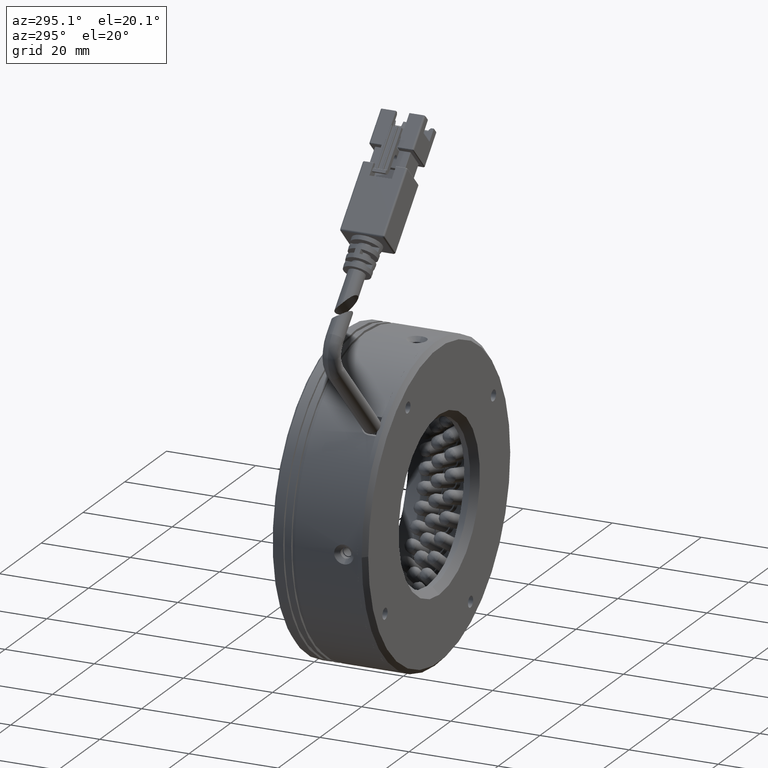
[diagram: clean part render]
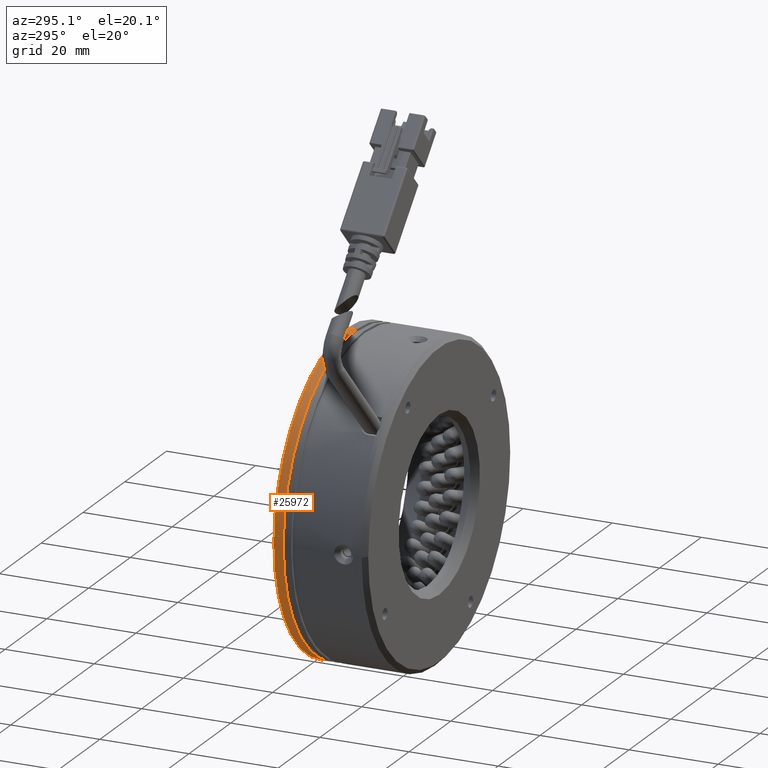
[diagram: same view with one face highlighted and labeled with its STEP entity id]
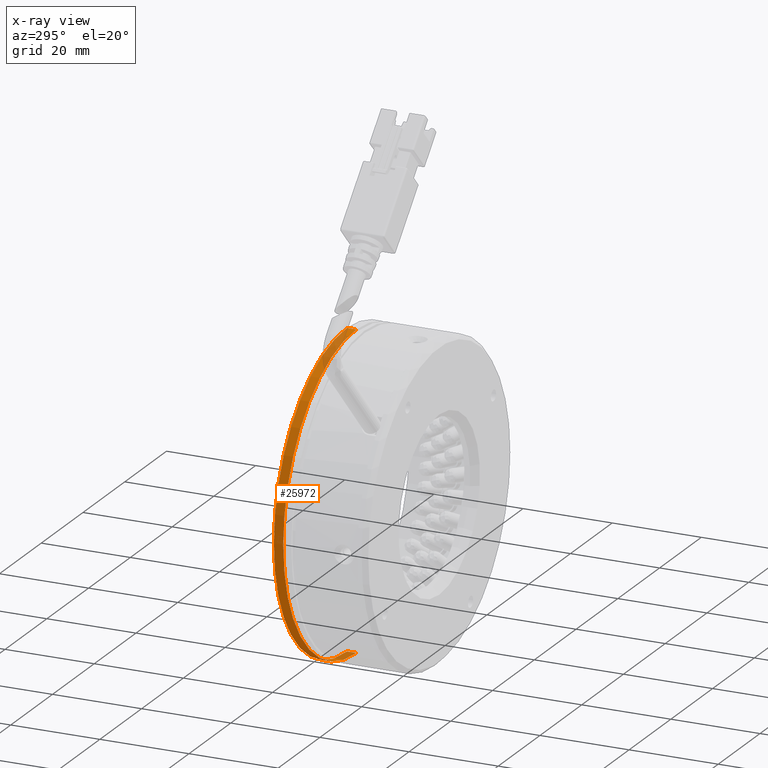
[diagram: x-ray of the same camera — body ghosted, the highlighted face saturated]
A machine part, auxiliary view. The second image highlights one B-rep face of the part: STEP entity #25972.
The next image is the same camera in x-ray: the body ghosted, the highlighted face saturated — about 12% of this face is hidden behind the body in this view.
In plain terms, the highlighted cylindrical surface (partial cylindrical patch) has radius 35 mm, axis along (-0, -1, -0).
Its self-contained STEP definition (entity closure, byte-faithful):
#1907 = LINE ( 'NONE', #85296, #42113 ) ;
#3392 = DIRECTION ( 'NONE',  ( -0.0000000000000000000, -1.000000000000000000, -0.0000000000000000000 ) ) ;
#5511 = ORIENTED_EDGE ( 'NONE', *, *, #39408, .F. ) ;
#9896 = CARTESIAN_POINT ( 'NONE',  ( -37.22376356038466100, -10.10550973775694800, -13.10242548495532100 ) ) ;
#18032 = LINE ( 'NONE', #79743, #60723 ) ;
#24405 = EDGE_CURVE ( 'NONE', #100332, #54335, #1907, .T. ) ;
#25781 = DIRECTION ( 'NONE',  ( -0.0000000000000000000, -1.000000000000000000, -0.0000000000000000000 ) ) ;
#25972 = ADVANCED_FACE ( 'NONE', ( #61521 ), #94124, .T. ) ;
#28885 = AXIS2_PLACEMENT_3D ( 'NONE', #51413, #3392, #59493 ) ;
#31771 = DIRECTION ( 'NONE',  ( -0.0000000000000000000, -1.000000000000000000, -0.0000000000000000000 ) ) ;
#32915 = ORIENTED_EDGE ( 'NONE', *, *, #24405, .T. ) ;
#33807 = ORIENTED_EDGE ( 'NONE', *, *, #46850, .T. ) ;
#35767 = VERTEX_POINT ( 'NONE', #48998 ) ;
#36780 = DIRECTION ( 'NONE',  ( 0.0000000000000000000, 1.000000000000000000, 0.0000000000000000000 ) ) ;
#37428 = CARTESIAN_POINT ( 'NONE',  ( -37.22376356038466100, -8.136936790559603900, -48.10242548495532600 ) ) ;
#38173 = CARTESIAN_POINT ( 'NONE',  ( -37.22376356038466100, -6.036936790559598100, -48.10242548495532600 ) ) ;
#39408 = EDGE_CURVE ( 'NONE', #35767, #61638, #18032, .T. ) ;
#42113 = VECTOR ( 'NONE', #93343, 1000.000000000000000 ) ;
#46850 = EDGE_CURVE ( 'NONE', #35767, #100332, #92790, .T. ) ;
#48998 = CARTESIAN_POINT ( 'NONE',  ( -37.22376356038465400, -6.036936790559598100, 21.89757451504468500 ) ) ;
#51413 = CARTESIAN_POINT ( 'NONE',  ( -37.22376356038466100, -6.036936790559598100, -13.10242548495532100 ) ) ;
#52519 = EDGE_CURVE ( 'NONE', #54335, #61638, #76269, .T. ) ;
#54335 = VERTEX_POINT ( 'NONE', #37428 ) ;
#59493 = DIRECTION ( 'NONE',  ( 0.0000000000000000000, 0.0000000000000000000, -1.000000000000000000 ) ) ;
#59808 = CARTESIAN_POINT ( 'NONE',  ( -37.22376356038465400, -8.136936790559603900, 21.89757451504468500 ) ) ;
#60723 = VECTOR ( 'NONE', #31771, 1000.000000000000000 ) ;
#61521 = FACE_OUTER_BOUND ( 'NONE', #64666, .T. ) ;
#61638 = VERTEX_POINT ( 'NONE', #59808 ) ;
#64666 = EDGE_LOOP ( 'NONE', ( #5511, #33807, #32915, #84802 ) ) ;
#66110 = DIRECTION ( 'NONE',  ( 0.0000000000000000000, 0.0000000000000000000, -1.000000000000000000 ) ) ;
#72038 = AXIS2_PLACEMENT_3D ( 'NONE', #9896, #25781, #66110 ) ;
#76269 = CIRCLE ( 'NONE', #95480, 35.00000000000000000 ) ;
#79743 = CARTESIAN_POINT ( 'NONE',  ( -37.22376356038465400, -10.10550973775694800, 21.89757451504468500 ) ) ;
#84802 = ORIENTED_EDGE ( 'NONE', *, *, #52519, .T. ) ;
#84813 = CARTESIAN_POINT ( 'NONE',  ( -37.22376356038466100, -8.136936790559603900, -13.10242548495532100 ) ) ;
#85296 = CARTESIAN_POINT ( 'NONE',  ( -37.22376356038466100, -10.10550973775694800, -48.10242548495532600 ) ) ;
#92790 = CIRCLE ( 'NONE', #28885, 35.00000000000000000 ) ;
#92834 = DIRECTION ( 'NONE',  ( 0.0000000000000000000, 0.0000000000000000000, -1.000000000000000000 ) ) ;
#93343 = DIRECTION ( 'NONE',  ( -0.0000000000000000000, -1.000000000000000000, -0.0000000000000000000 ) ) ;
#94124 = CYLINDRICAL_SURFACE ( 'NONE', #72038, 35.00000000000000000 ) ;
#95480 = AXIS2_PLACEMENT_3D ( 'NONE', #84813, #36780, #92834 ) ;
#100332 = VERTEX_POINT ( 'NONE', #38173 ) ;